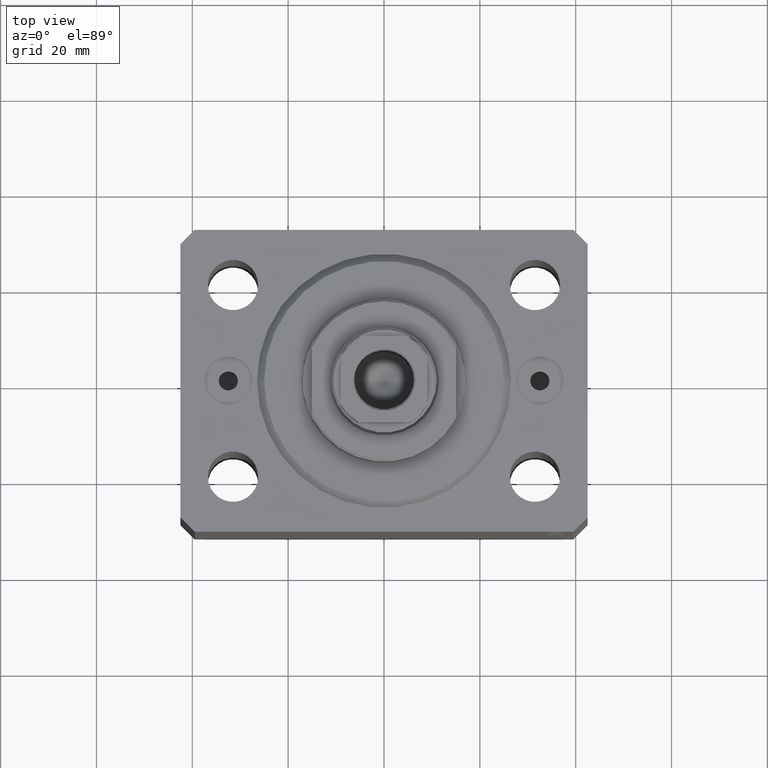
[diagram: clean part render]
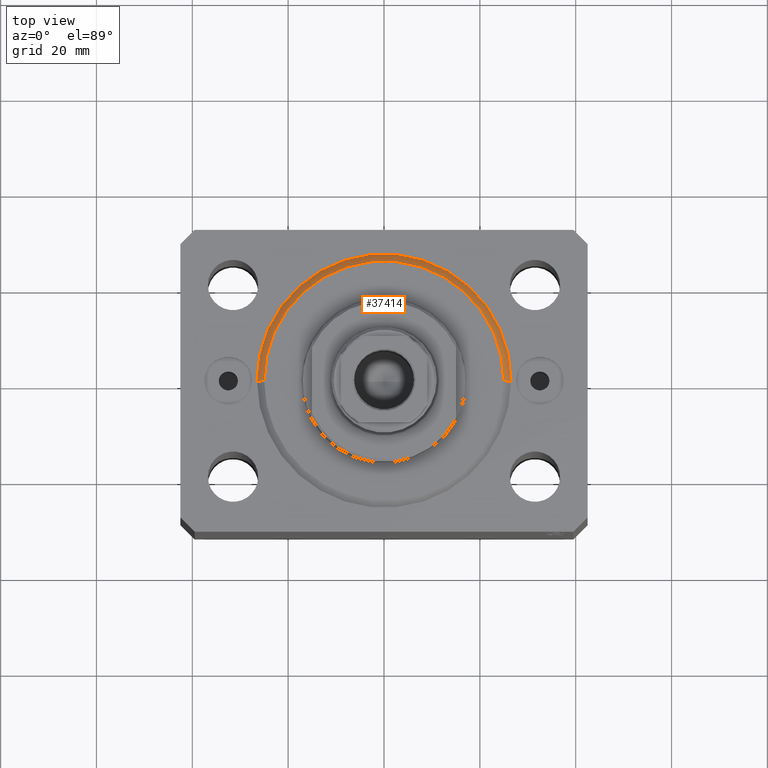
[diagram: same view with one face highlighted and labeled with its STEP entity id]
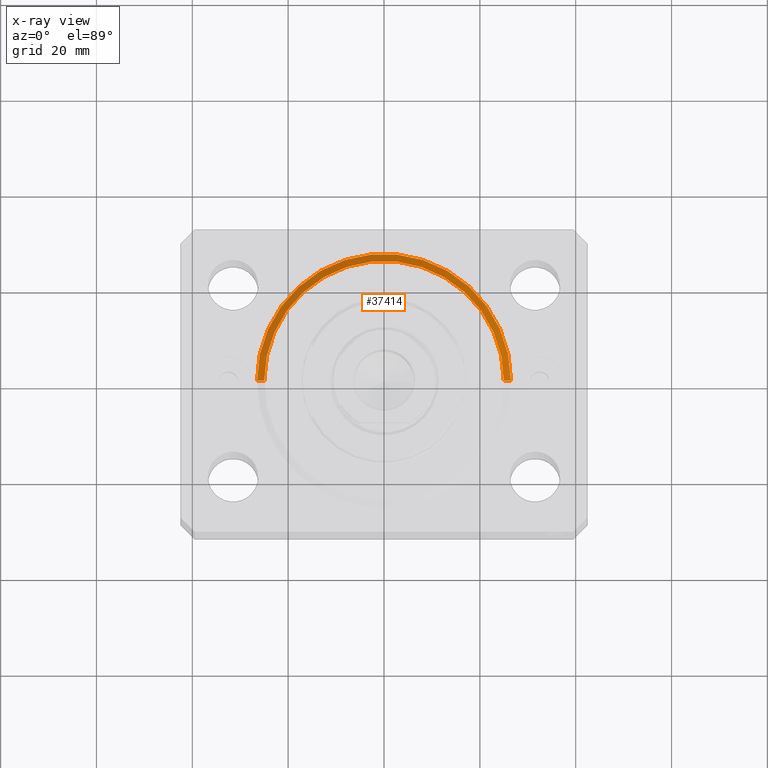
[diagram: x-ray of the same camera — body ghosted, the highlighted face saturated]
A machine part, top view. The second image highlights one B-rep face of the part: STEP entity #37414.
The next image is the same camera in x-ray: the body ghosted, the highlighted face saturated — about 0% of this face is hidden behind the body in this view.
In plain terms, the highlighted conical surface has half-angle 45 deg.
Its self-contained STEP definition (entity closure, byte-faithful):
#990 = CARTESIAN_POINT ( 'NONE',  ( 26.50000000000000355, 3.245314017740486554E-15, 1.500000000000018652 ) ) ;
#1336 = DIRECTION ( 'NONE',  ( 1.000000000000000000, 0.000000000000000000, 0.000000000000000000 ) ) ;
#1534 = VERTEX_POINT ( 'NONE', #21993 ) ;
#1818 = DIRECTION ( 'NONE',  ( 1.000000000000000000, 0.000000000000000000, 0.000000000000000000 ) ) ;
#2580 = FACE_OUTER_BOUND ( 'NONE', #43840, .T. ) ;
#4454 = ORIENTED_EDGE ( 'NONE', *, *, #37954, .F. ) ;
#4971 = DIRECTION ( 'NONE',  ( -0.000000000000000000, -0.000000000000000000, -1.000000000000000000 ) ) ;
#5667 = AXIS2_PLACEMENT_3D ( 'NONE', #40567, #20352, #16307 ) ;
#7932 = DIRECTION ( 'NONE',  ( -0.7071067811865483499, 8.659560562354942719E-17, 0.7071067811865466846 ) ) ;
#8557 = AXIS2_PLACEMENT_3D ( 'NONE', #32620, #4971, #1818 ) ;
#13232 = LINE ( 'NONE', #44025, #40193 ) ;
#14681 = LINE ( 'NONE', #34469, #37323 ) ;
#16307 = DIRECTION ( 'NONE',  ( 1.000000000000000000, 0.000000000000000000, 0.000000000000000000 ) ) ;
#16592 = ORIENTED_EDGE ( 'NONE', *, *, #39017, .F. ) ;
#16968 = AXIS2_PLACEMENT_3D ( 'NONE', #39089, #26280, #1336 ) ;
#18515 = EDGE_CURVE ( 'NONE', #1534, #35971, #14681, .T. ) ;
#20352 = DIRECTION ( 'NONE',  ( -0.000000000000000000, -0.000000000000000000, 1.000000000000000000 ) ) ;
#21993 = CARTESIAN_POINT ( 'NONE',  ( -24.99999999999998224, 3.153465507804433615E-15, 0.000000000000000000 ) ) ;
#26280 = DIRECTION ( 'NONE',  ( -0.000000000000000000, -0.000000000000000000, 1.000000000000000000 ) ) ;
#26494 = CONICAL_SURFACE ( 'NONE', #5667, 26.50000000000000355, 0.7853981633974495002 ) ;
#27157 = DIRECTION ( 'NONE',  ( 0.7071067811865483499, 0.000000000000000000, 0.7071067811865466846 ) ) ;
#27392 = CARTESIAN_POINT ( 'NONE',  ( 24.99999999999998224, 0.000000000000000000, 0.000000000000000000 ) ) ;
#29382 = CIRCLE ( 'NONE', #8557, 24.99999999999998224 ) ;
#30613 = CIRCLE ( 'NONE', #16968, 26.50000000000000355 ) ;
#31213 = EDGE_CURVE ( 'NONE', #38648, #35971, #30613, .T. ) ;
#31335 = VERTEX_POINT ( 'NONE', #27392 ) ;
#32620 = CARTESIAN_POINT ( 'NONE',  ( 0.000000000000000000, 0.000000000000000000, 0.000000000000000000 ) ) ;
#34469 = CARTESIAN_POINT ( 'NONE',  ( -26.50000000000000355, 3.245314017740486554E-15, 1.500000000000018652 ) ) ;
#35971 = VERTEX_POINT ( 'NONE', #41379 ) ;
#37323 = VECTOR ( 'NONE', #7932, 1000.000000000000000 ) ;
#37414 = ADVANCED_FACE ( 'NONE', ( #2580 ), #26494, .T. ) ;
#37954 = EDGE_CURVE ( 'NONE', #1534, #31335, #29382, .T. ) ;
#38648 = VERTEX_POINT ( 'NONE', #990 ) ;
#39017 = EDGE_CURVE ( 'NONE', #31335, #38648, #13232, .T. ) ;
#39089 = CARTESIAN_POINT ( 'NONE',  ( 0.000000000000000000, 0.000000000000000000, 1.500000000000018652 ) ) ;
#40193 = VECTOR ( 'NONE', #27157, 1000.000000000000000 ) ;
#40567 = CARTESIAN_POINT ( 'NONE',  ( 0.000000000000000000, 0.000000000000000000, 1.500000000000018652 ) ) ;
#41379 = CARTESIAN_POINT ( 'NONE',  ( -26.50000000000000355, 0.000000000000000000, 1.500000000000018652 ) ) ;
#42549 = ORIENTED_EDGE ( 'NONE', *, *, #31213, .F. ) ;
#43154 = ORIENTED_EDGE ( 'NONE', *, *, #18515, .T. ) ;
#43840 = EDGE_LOOP ( 'NONE', ( #4454, #43154, #42549, #16592 ) ) ;
#44025 = CARTESIAN_POINT ( 'NONE',  ( 26.50000000000000355, 0.000000000000000000, 1.500000000000018652 ) ) ;